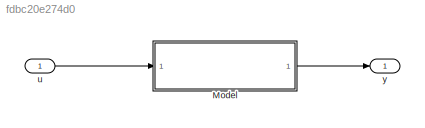
MODEL slx_fdbc20e274d0
KIND model
CONFIG AbsTol = auto
CONFIG EnableMultiTasking = on
CONFIG FixedStep = auto
CONFIG MaxStep = auto
CONFIG MinStep = auto
CONFIG RelTol = 1e-3
CONFIG SampleTimeConstraint = Unconstrained
CONFIG SolverName = ode23t
CONFIG StartTime = 0.0
CONFIG StopTime = 50
BLOCK [ModelReference] Model
  CopyOfModelProtected = on
  ModelNameDialog = Excavator1PT.slxp
  ModelReferenceVersion = 3.2
  Ports = [1, 1]
BLOCK [Inport] u
BLOCK [Outport] y
LINE Model:1 -> y:1
LINE u:1 -> Model:1
